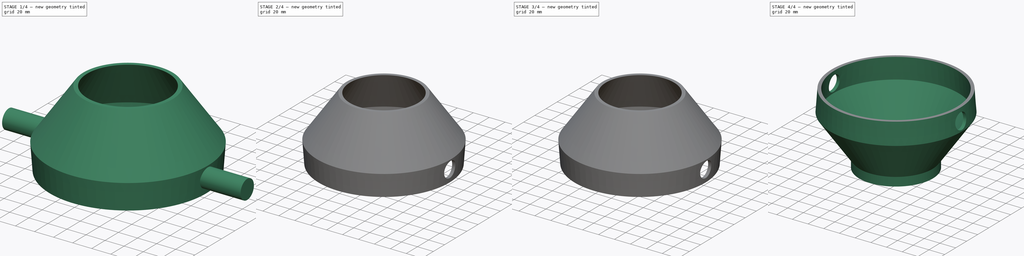
[diagram: build sequence overview — one tinted view per stage of 4, left to right]
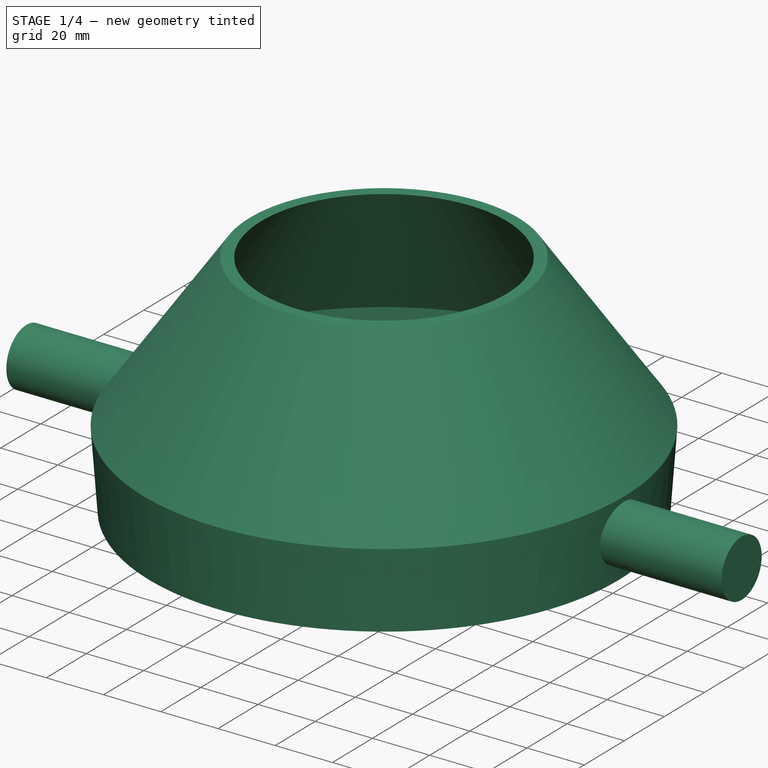
[diagram: stage 1 of 4 — iso view after this stage's code; geometry added in this stage tinted green]
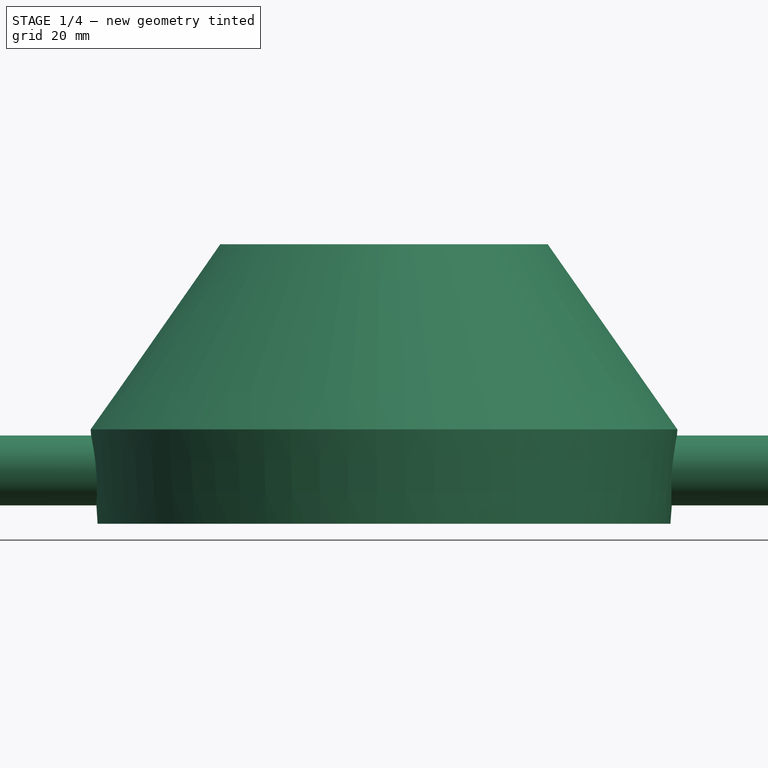
[diagram: stage 1 of 4 — front view after this stage's code; geometry added in this stage tinted green]
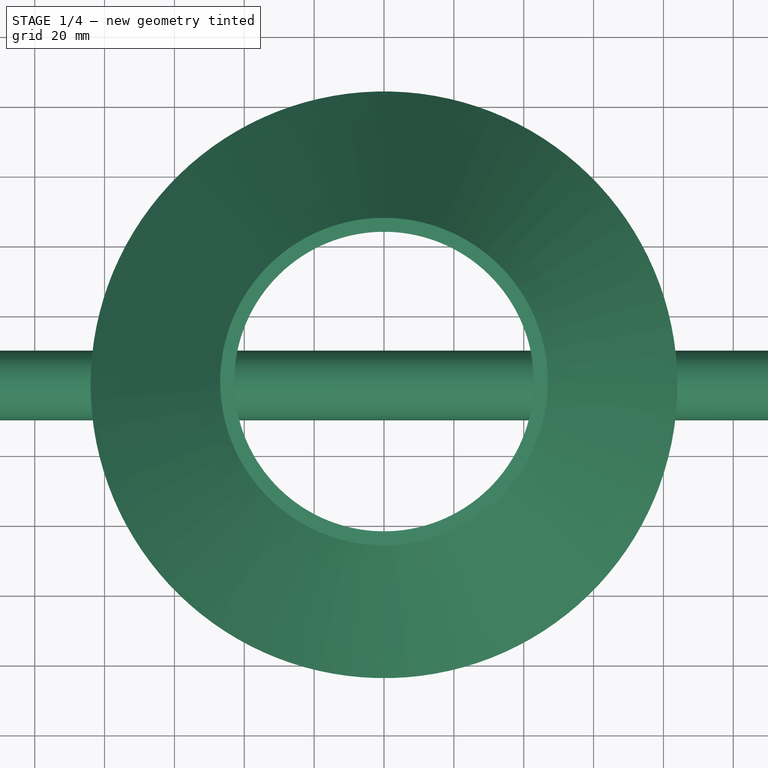
[diagram: stage 1 of 4 — top view after this stage's code; geometry added in this stage tinted green]
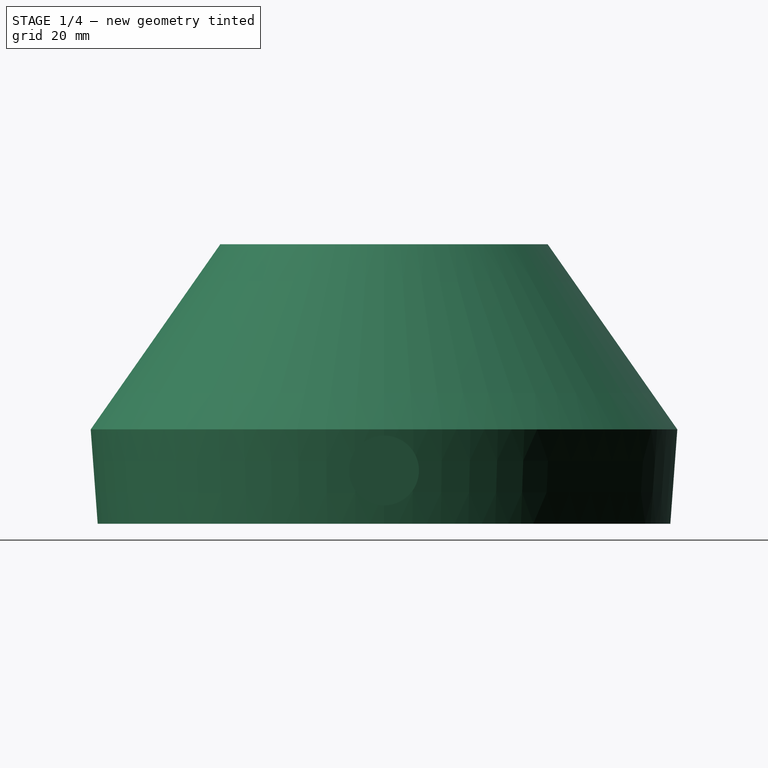
[diagram: stage 1 of 4 — right view after this stage's code; geometry added in this stage tinted green]
FCSTD DOCUMENT  (FreeCAD 0.16R6703 (Git))
Label: base
License: All rights reserved
LicenseURL: http://en.wikipedia.org/wiki/All_rights_reserved
objects: Sketcher::SketchObject×5, Part::Extrusion×4, Part::Cut×2, Part::MultiFuse×2, Part::Cylinder×1, Part::Revolution×1
note: 15 computed .brp shape members not serialized (recipe doc carries the construction recipe); baked Part::Feature solids carry a one-line shape summary decoded from their .brp

FEATURE [Part::Cylinder] Cylinder
  Angle = 360
  Height = 250
  Placement = pos=(-125,0,15.25) rot=(0,1,0;1.5708rad)
  Radius = 10
FEATURE [Sketcher::SketchObject] Sketch006
  Placement = pos=(0,0,0) rot=(1,0,0;1.5708rad)
  sketch-geometry (6):
    g0: LineSegment StartX=80 StartY=27 StartZ=0 EndX=42.889 EndY=80 EndZ=0
    g1: LineSegment StartX=42.889 StartY=80 StartZ=0 EndX=46.889 EndY=80 EndZ=0
    g2: LineSegment StartX=46.889 StartY=80 StartZ=0 EndX=84 EndY=27 EndZ=0
    g3: LineSegment StartX=84 StartY=27 StartZ=0 EndX=82 EndY=0 EndZ=0
    g4: LineSegment StartX=82 StartY=0 StartZ=0 EndX=78 EndY=0 EndZ=0
    g5: LineSegment StartX=78 StartY=0 StartZ=0 EndX=80 EndY=27 EndZ=0
  constraints (18):
    c: Coincident(g0,g1)
    c: Horizontal(g1)
    c: Coincident(g1,g2)
    c: Angle(g0,g-1) = 0.959931
    c: Coincident(g2,g3)
    c: Coincident(g3,g4)
    c: Horizontal(g4)
    c: Coincident(g4,g5)
    c: Coincident(g5,g0)
    c: DistanceX(g-1,g4) = 78
    c: Equal(g5,g3)
    c: DistanceY(g3,g3) = 27
    c: PointOnObject(g3,g-1)
    c: DistanceX(g4,g4) = 4
    c: Equal(g4,g1)
    c: DistanceY(g3,g1) = 80
    c: Parallel(g5,g3)
    c: DistanceX(g-1,g0) = 80
FEATURE [Part::Revolution] Revolve
  Angle = 360
  Axis = (0,0,1)
  Base = (0,0,0)
  Solid = true
  Source = -> Sketch006
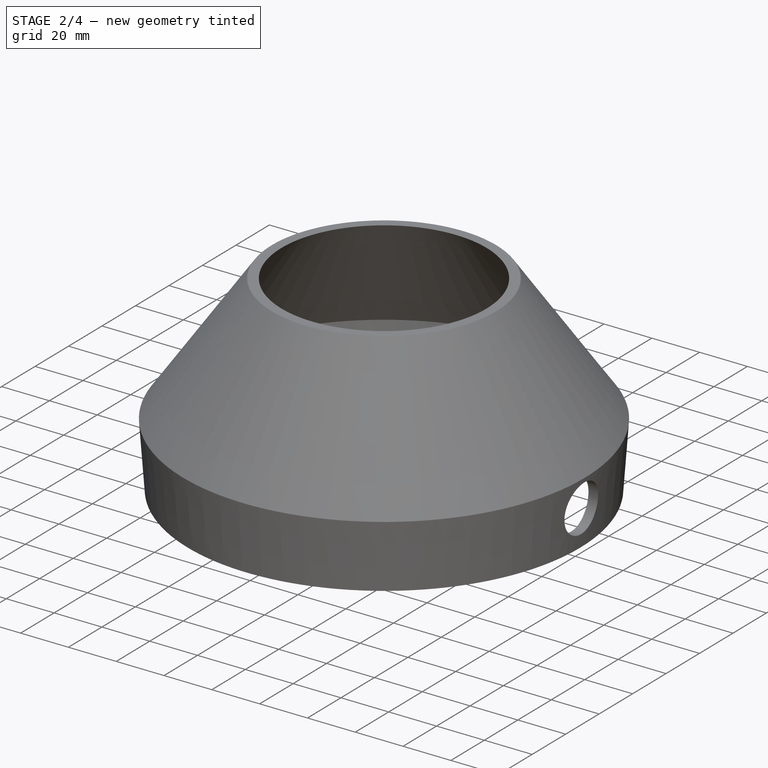
[diagram: stage 2 of 4 — iso view after this stage's code; geometry added in this stage tinted green]
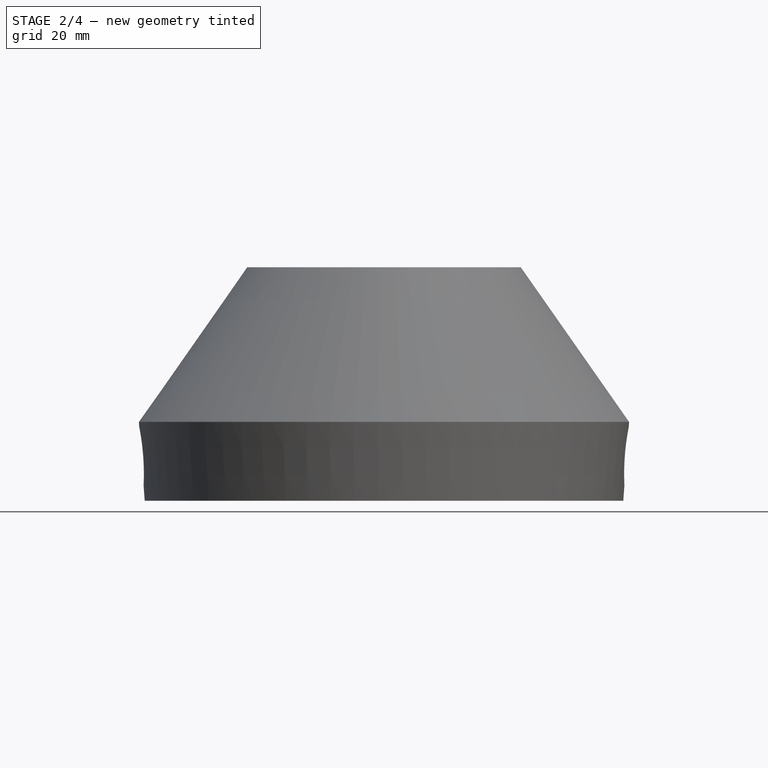
[diagram: stage 2 of 4 — front view after this stage's code; geometry added in this stage tinted green]
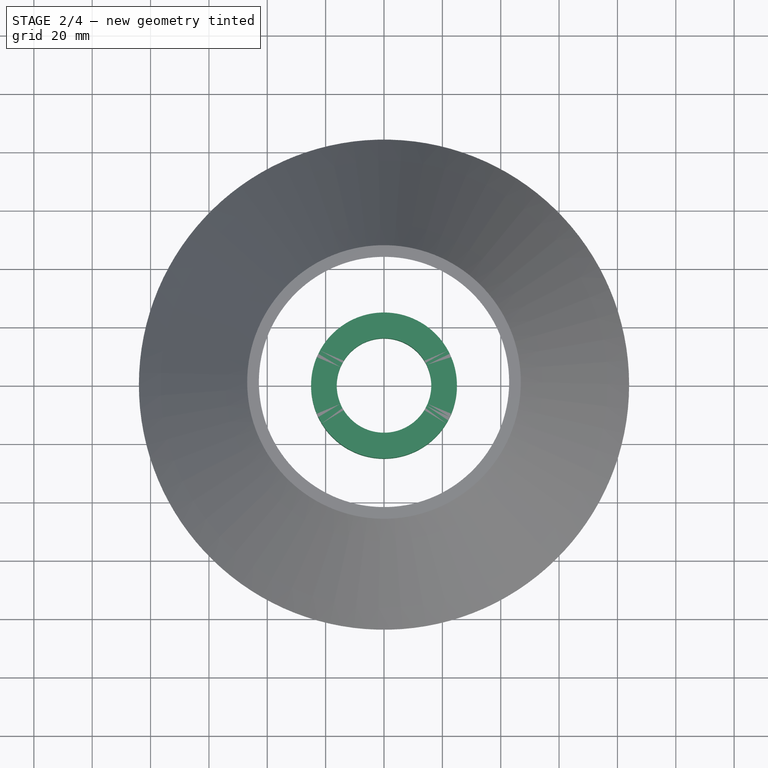
[diagram: stage 2 of 4 — top view after this stage's code; geometry added in this stage tinted green]
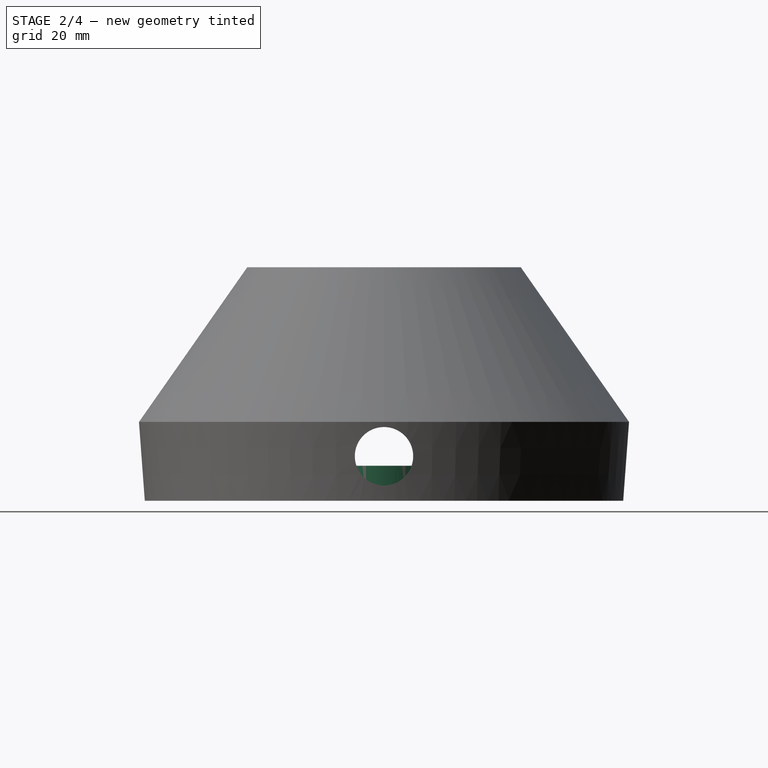
[diagram: stage 2 of 4 — right view after this stage's code; geometry added in this stage tinted green]
FEATURE [Sketcher::SketchObject] Sketch004
  sketch-geometry (2):
    g0: Circle CenterX=0 CenterY=0 CenterZ=0 NormalX=0 NormalY=0 NormalZ=1 Radius=16.2
    g1: Circle CenterX=0 CenterY=0 CenterZ=0 NormalX=0 NormalY=0 NormalZ=1 Radius=25
  constraints (4):
    c: Coincident(g0,g-1)
    c: Coincident(g1,g-1)
    c: Radius(g0) = 16.2
    c: Radius(g1) = 25
FEATURE [Part::Extrusion] Extrude004
  Base = -> Sketch004
  Dir = (0,0,12)
  Solid = true
FEATURE [Sketcher::SketchObject] Sketch005
  sketch-geometry (6):
    g0: LineSegment [constr] StartX=-20 StartY=0 StartZ=0 EndX=20 EndY=0 EndZ=0
    g1: LineSegment [constr] StartX=0 StartY=20 StartZ=0 EndX=0 EndY=-20 EndZ=0
    g2: Circle CenterX=-20 CenterY=0 CenterZ=0 NormalX=0 NormalY=0 NormalZ=1 Radius=1.75
    g3: Circle CenterX=0 CenterY=-20 CenterZ=0 NormalX=0 NormalY=0 NormalZ=1 Radius=1.75
    g4: Circle CenterX=20 CenterY=0 CenterZ=0 NormalX=0 NormalY=0 NormalZ=1 Radius=1.75
    g5: Circle CenterX=0 CenterY=20 CenterZ=0 NormalX=0 NormalY=0 NormalZ=1 Radius=1.75
  constraints (16):
    c: PointOnObject(g0,g-1)
    c: Horizontal(g0)
    c: PointOnObject(g1,g-2)
    c: Vertical(g1)
    c: Equal(g0,g1)
    c: Symmetric(g0,g0,g-2)
    c: Symmetric(g1,g1,g-1)
    c: DistanceX(g0,g0) = 40
    c: Coincident(g2,g0)
    c: Coincident(g3,g1)
    c: Coincident(g4,g0)
    c: Coincident(g5,g1)
    c: Radius(g5) = 1.75
    c: Equal(g5,g2)
    c: Equal(g5,g3)
    c: Equal(g5,g4)
FEATURE [Part::Extrusion] Extrude005
  Base = -> Sketch005
  Dir = (0,0,12)
  Solid = true
FEATURE [Part::Cut] Cut001
  Base = -> Revolve
  Tool = -> Cylinder
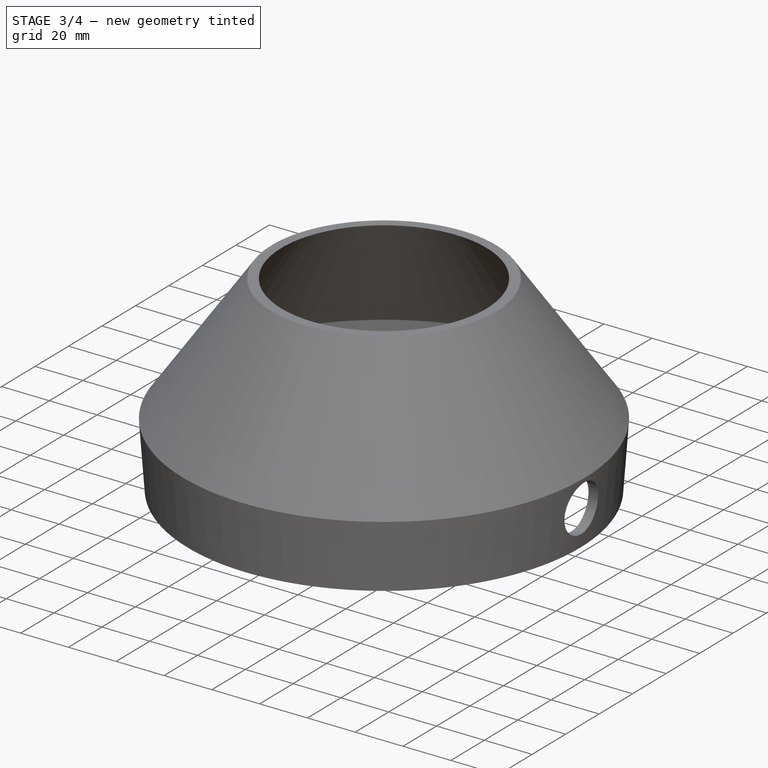
[diagram: stage 3 of 4 — iso view after this stage's code; geometry added in this stage tinted green]
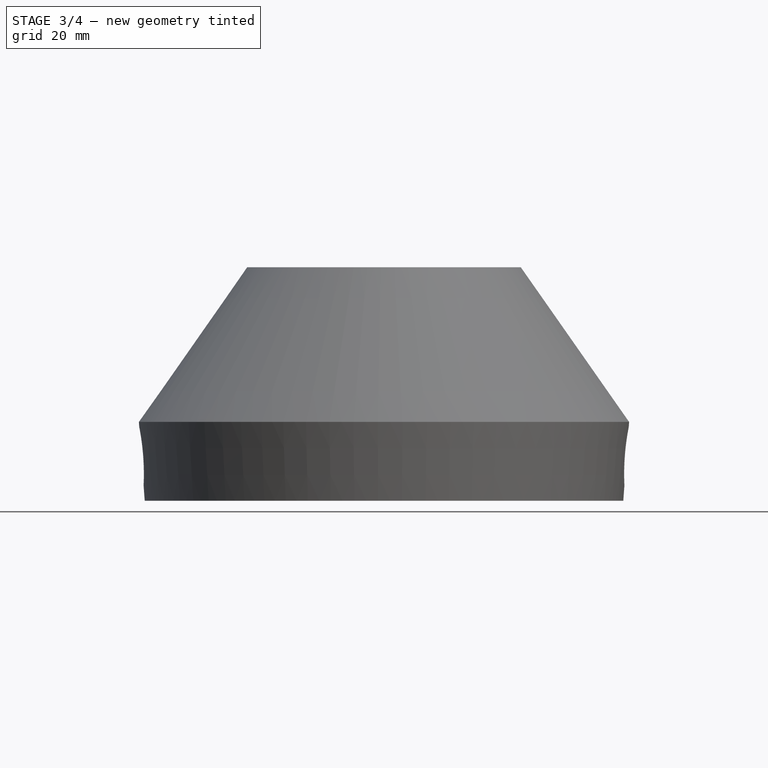
[diagram: stage 3 of 4 — front view after this stage's code; geometry added in this stage tinted green]
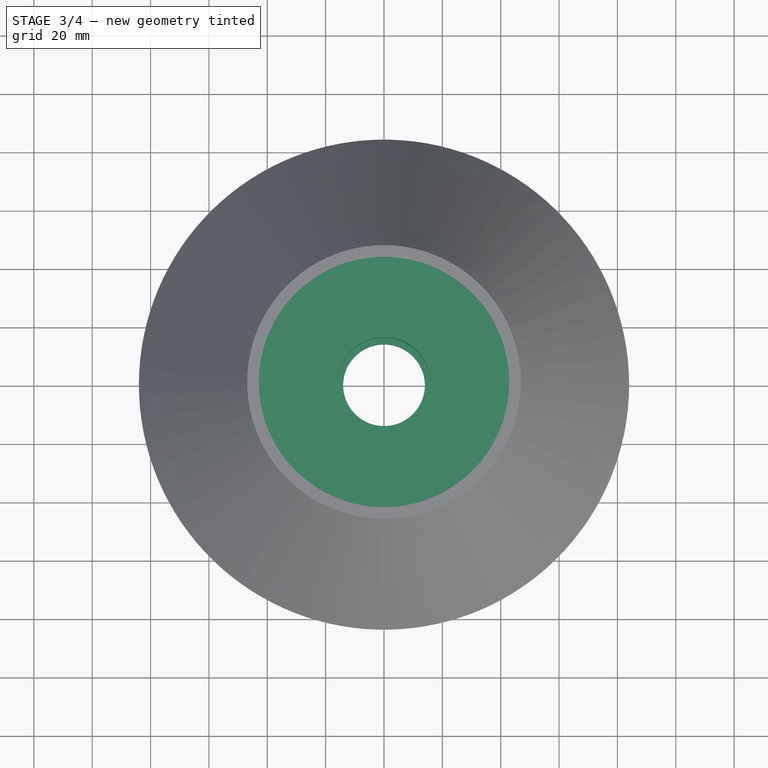
[diagram: stage 3 of 4 — top view after this stage's code; geometry added in this stage tinted green]
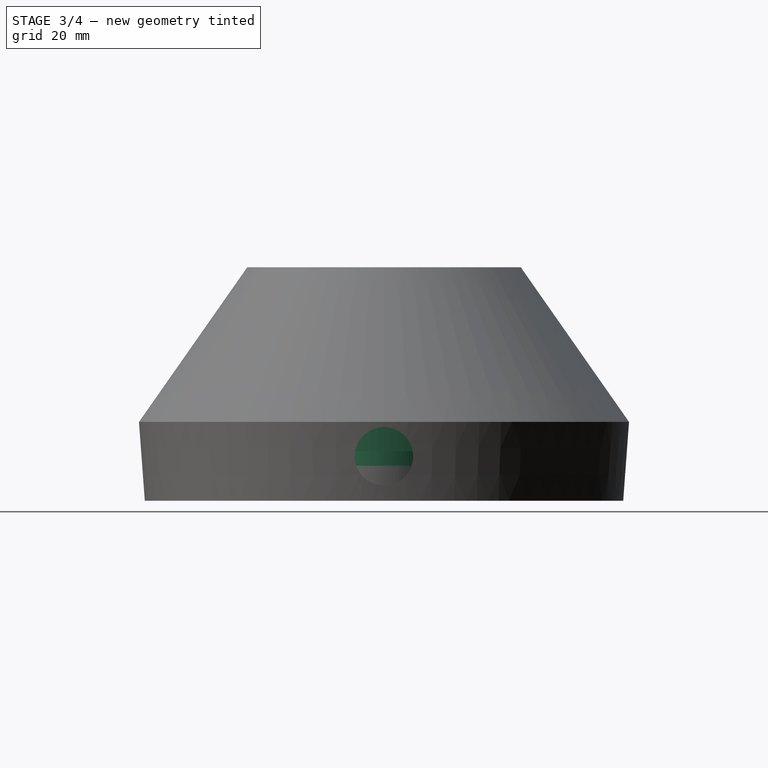
[diagram: stage 3 of 4 — right view after this stage's code; geometry added in this stage tinted green]
FEATURE [Sketcher::SketchObject] Sketch002
  sketch-geometry (2):
    g0: Circle CenterX=0 CenterY=0 CenterZ=0 NormalX=0 NormalY=0 NormalZ=1 Radius=47
    g1: Circle CenterX=0 CenterY=0 CenterZ=0 NormalX=0 NormalY=0 NormalZ=1 Radius=16.2
  constraints (4):
    c: Coincident(g0,g-1)
    c: Coincident(g1,g-1)
    c: Radius(g0) = 47
    c: Radius(g1) = 16.2
FEATURE [Part::Extrusion] Extrude002
  Base = -> Sketch002
  Dir = (0,0,11)
  Placement = pos=(0,0,17) rot=(0,0,1;0rad)
  Solid = true
FEATURE [Sketcher::SketchObject] Sketch003
  sketch-geometry (2):
    g0: Circle CenterX=0 CenterY=0 CenterZ=0 NormalX=0 NormalY=0 NormalZ=1 Radius=14
    g1: Circle CenterX=0 CenterY=0 CenterZ=0 NormalX=0 NormalY=0 NormalZ=1 Radius=25
  constraints (4):
    c: Coincident(g0,g-1)
    c: Coincident(g1,g-1)
    c: Radius(g0) = 14
    c: Radius(g1) = 25
FEATURE [Part::Extrusion] Extrude003
  Base = -> Sketch003
  Dir = (0,0,5)
  Placement = pos=(0,0,12) rot=(0,0,1;0rad)
  Solid = true
FEATURE [Part::Cut] Cut
  Base = -> Extrude004
  Tool = -> Extrude005
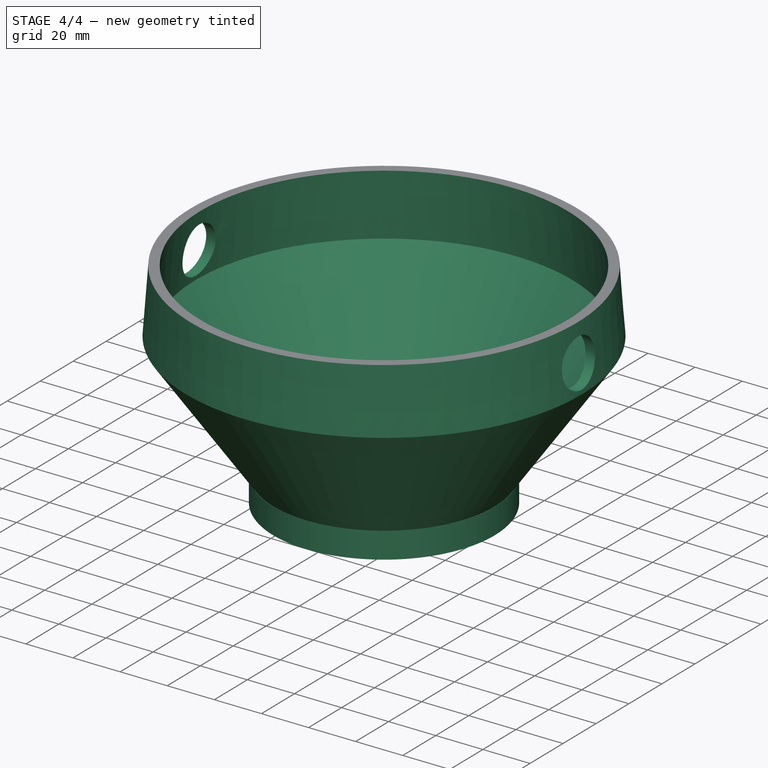
[diagram: stage 4 of 4 — iso view after this stage's code; geometry added in this stage tinted green]
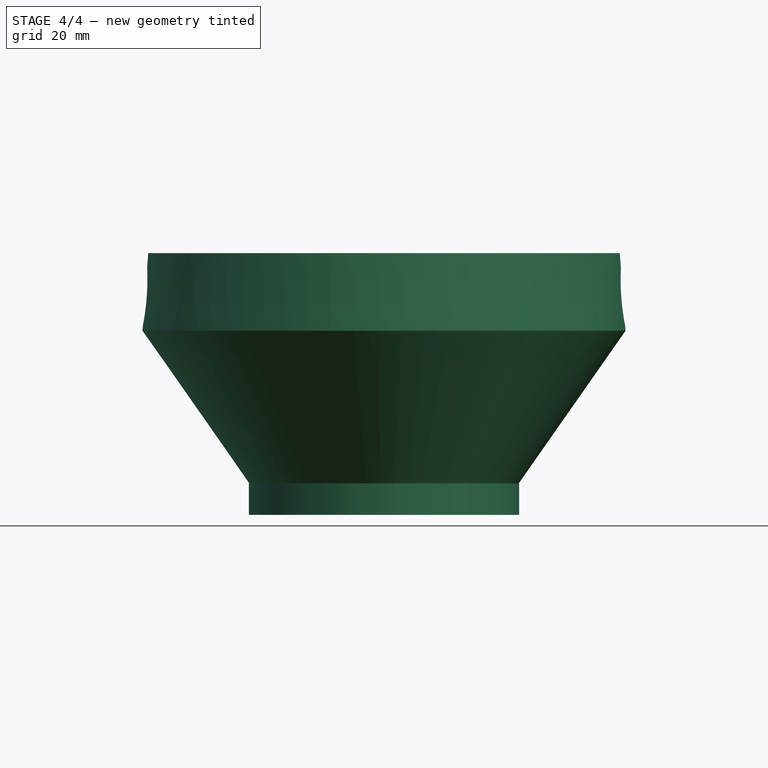
[diagram: stage 4 of 4 — front view after this stage's code; geometry added in this stage tinted green]
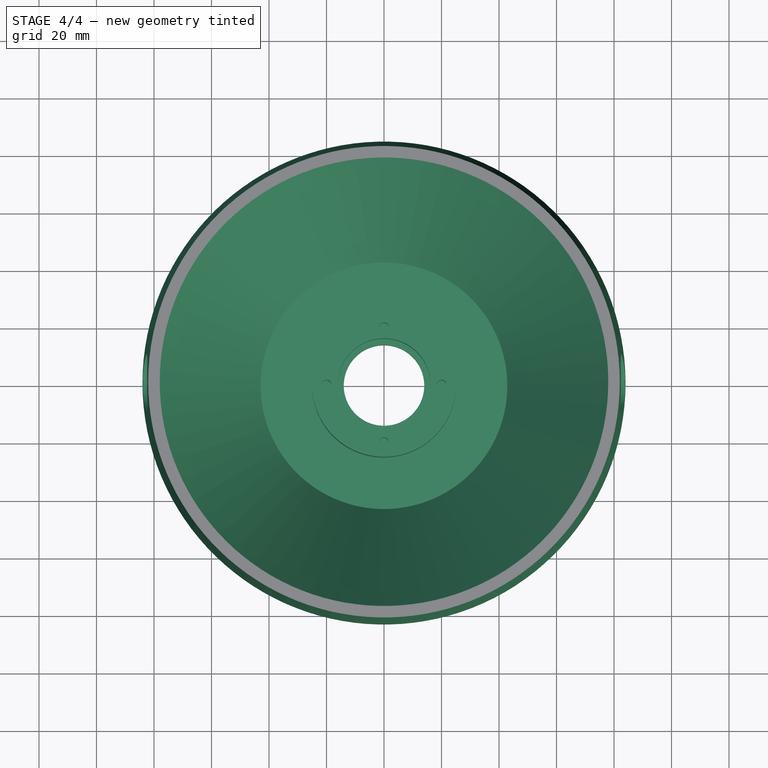
[diagram: stage 4 of 4 — top view after this stage's code; geometry added in this stage tinted green]
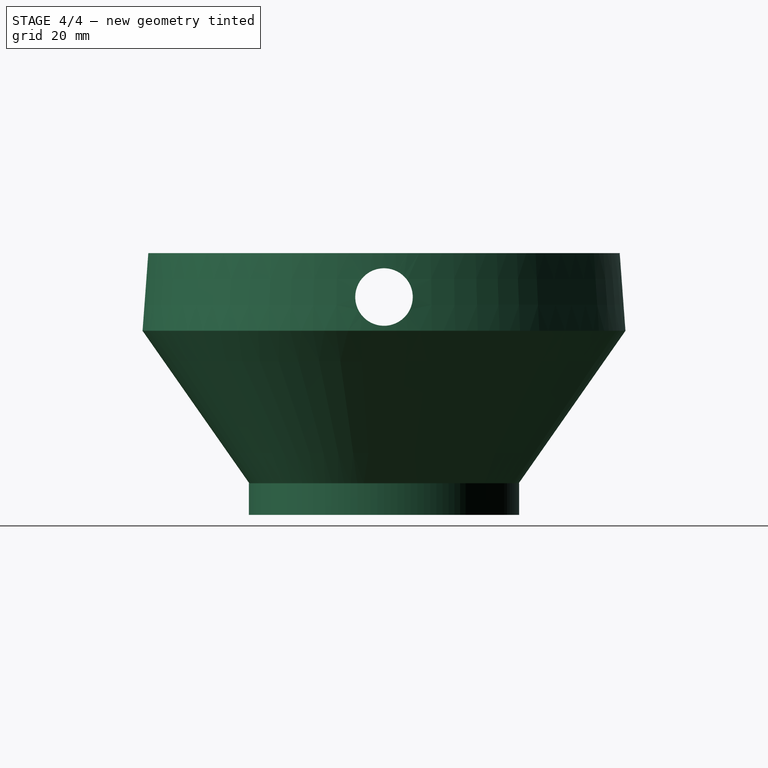
[diagram: stage 4 of 4 — right view after this stage's code; geometry added in this stage tinted green]
FEATURE [Part::MultiFuse] Fusion  label="bearings-plane"
  Placement = pos=(0,0,63) rot=(0,0,1;0rad)
  Shapes = -> [Extrude002,Extrude003,Cut]
FEATURE [Part::MultiFuse] Fusion001
  Placement = pos=(0,0,0) rot=(1,0,0;3.14159rad)
  Shapes = -> [Fusion,Cut001]
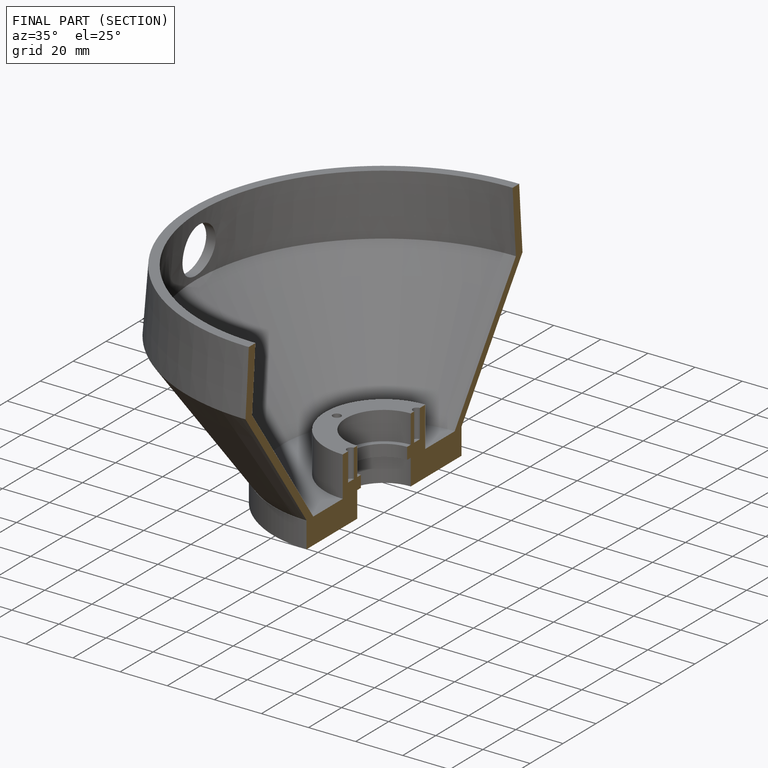
[diagram: finished part — half-section view (interior)]
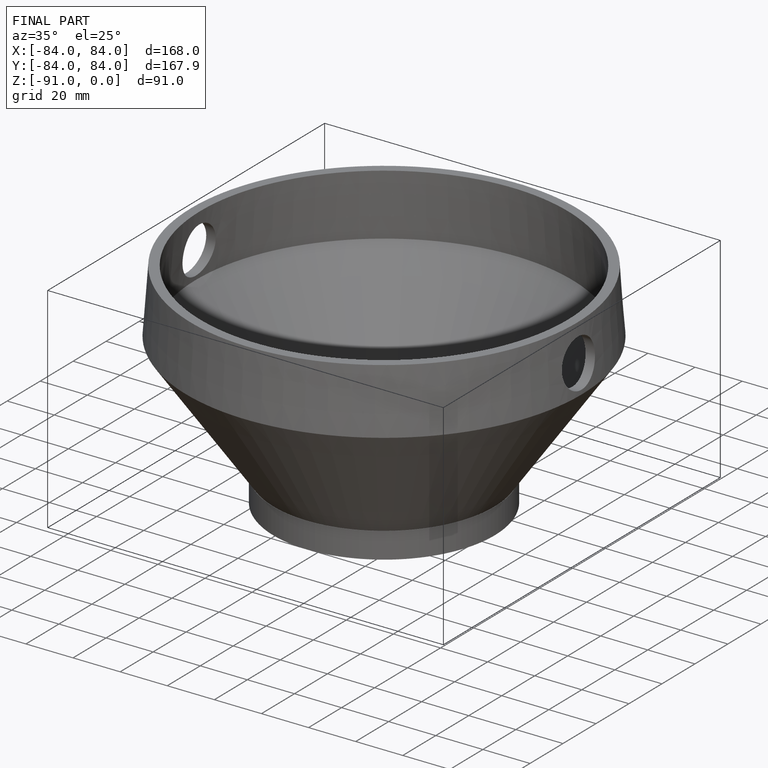
[diagram: finished part — iso view with bounding-box wireframe]
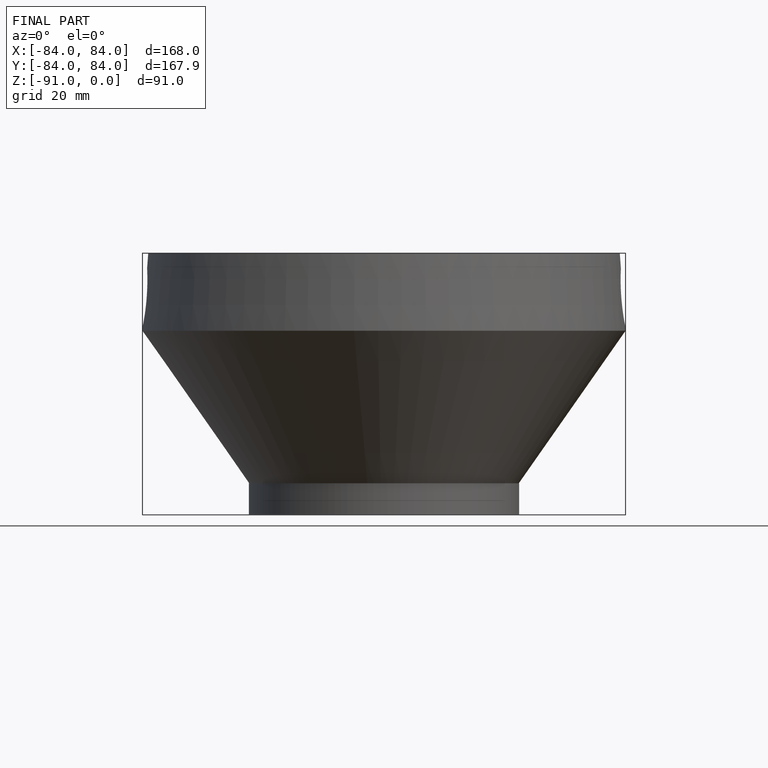
[diagram: finished part — front view with bounding-box wireframe]
